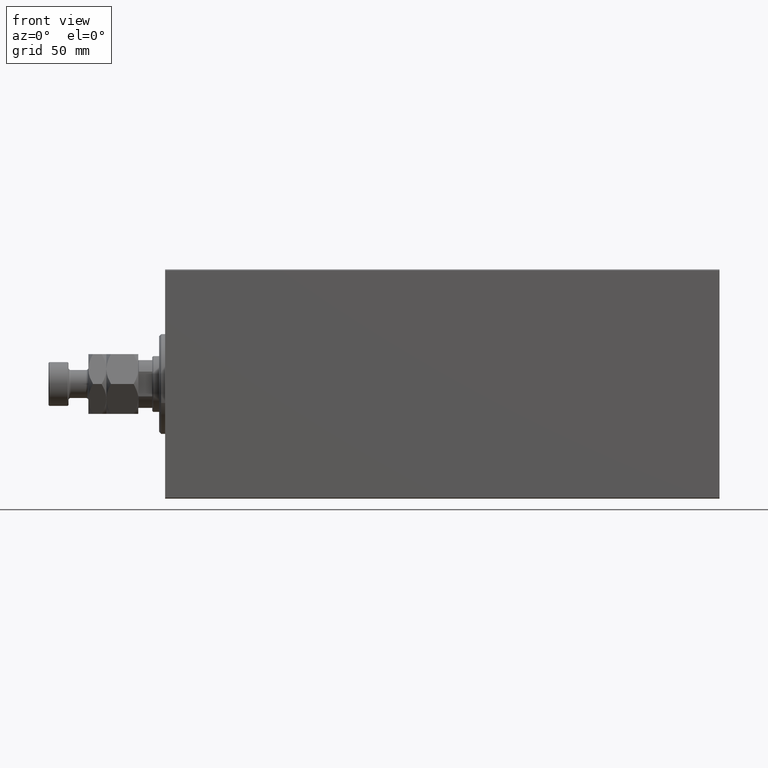
[diagram: clean part render]
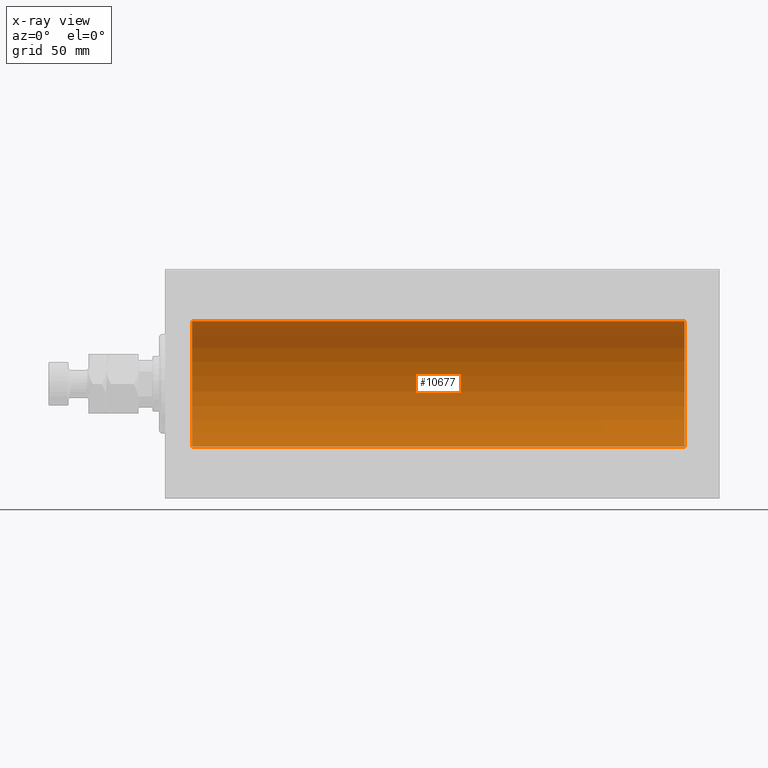
[diagram: x-ray — body ghosted, one internal face saturated and labeled with its STEP entity id]
A machine part, front view, then the same camera in x-ray: the body is ghosted and one INTERNAL B-rep face — a face not visible from any outside direction — is saturated and labeled: STEP entity #10677.
In plain terms, the highlighted cylindrical surface (partial cylindrical patch) has radius 31.5 mm, axis along (-1, -0, -0).
Its self-contained STEP definition (entity closure, byte-faithful):
#488 = AXIS2_PLACEMENT_3D ( 'NONE', #39389, #32957, #43546 ) ;
#4625 = DIRECTION ( 'NONE',  ( -1.000000000000000000, -0.000000000000000000, -0.000000000000000000 ) ) ;
#4758 = EDGE_CURVE ( 'NONE', #28755, #38875, #37499, .T. ) ;
#5442 = LINE ( 'NONE', #44318, #12066 ) ;
#6182 = CARTESIAN_POINT ( 'NONE',  ( 13.50000000000001243, 0.000000000000000000, 31.50000000000000000 ) ) ;
#7367 = AXIS2_PLACEMENT_3D ( 'NONE', #11952, #18395, #17940 ) ;
#9884 = CARTESIAN_POINT ( 'NONE',  ( 260.5000000000000000, 0.000000000000000000, 31.50000000000000000 ) ) ;
#10632 = VERTEX_POINT ( 'NONE', #42821 ) ;
#10677 = ADVANCED_FACE ( 'NONE', ( #22123 ), #21659, .F. ) ;
#11952 = CARTESIAN_POINT ( 'NONE',  ( 260.5000000000000000, 0.000000000000000000, 0.000000000000000000 ) ) ;
#12066 = VECTOR ( 'NONE', #22701, 1000.000000000000000 ) ;
#14963 = CARTESIAN_POINT ( 'NONE',  ( 13.50000000000001243, 3.857637417314162689E-15, -31.50000000000000000 ) ) ;
#15171 = ORIENTED_EDGE ( 'NONE', *, *, #4758, .T. ) ;
#15267 = EDGE_CURVE ( 'NONE', #38875, #44403, #40172, .T. ) ;
#17473 = ORIENTED_EDGE ( 'NONE', *, *, #39950, .F. ) ;
#17940 = DIRECTION ( 'NONE',  ( 0.000000000000000000, 0.000000000000000000, 1.000000000000000000 ) ) ;
#18113 = ORIENTED_EDGE ( 'NONE', *, *, #25455, .F. ) ;
#18245 = CARTESIAN_POINT ( 'NONE',  ( 260.5000000000000000, 0.000000000000000000, 31.50000000000000000 ) ) ;
#18395 = DIRECTION ( 'NONE',  ( -1.000000000000000000, 0.000000000000000000, 0.000000000000000000 ) ) ;
#20457 = DIRECTION ( 'NONE',  ( -1.000000000000000000, -0.000000000000000000, -0.000000000000000000 ) ) ;
#21321 = CIRCLE ( 'NONE', #7367, 31.50000000000000000 ) ;
#21659 = CYLINDRICAL_SURFACE ( 'NONE', #35763, 31.50000000000000000 ) ;
#22123 = FACE_OUTER_BOUND ( 'NONE', #27815, .T. ) ;
#22701 = DIRECTION ( 'NONE',  ( -1.000000000000000000, -0.000000000000000000, -0.000000000000000000 ) ) ;
#25455 = EDGE_CURVE ( 'NONE', #28755, #10632, #21321, .T. ) ;
#27815 = EDGE_LOOP ( 'NONE', ( #17473, #18113, #15171, #45198 ) ) ;
#28755 = VERTEX_POINT ( 'NONE', #18245 ) ;
#31452 = VECTOR ( 'NONE', #20457, 1000.000000000000000 ) ;
#32701 = DIRECTION ( 'NONE',  ( 0.000000000000000000, 0.000000000000000000, 1.000000000000000000 ) ) ;
#32957 = DIRECTION ( 'NONE',  ( -1.000000000000000000, 0.000000000000000000, 0.000000000000000000 ) ) ;
#35763 = AXIS2_PLACEMENT_3D ( 'NONE', #36144, #4625, #32701 ) ;
#36144 = CARTESIAN_POINT ( 'NONE',  ( 260.5000000000000000, 0.000000000000000000, 0.000000000000000000 ) ) ;
#37499 = LINE ( 'NONE', #9884, #31452 ) ;
#38875 = VERTEX_POINT ( 'NONE', #6182 ) ;
#39389 = CARTESIAN_POINT ( 'NONE',  ( 13.50000000000001243, 0.000000000000000000, 0.000000000000000000 ) ) ;
#39950 = EDGE_CURVE ( 'NONE', #10632, #44403, #5442, .T. ) ;
#40172 = CIRCLE ( 'NONE', #488, 31.50000000000000000 ) ;
#42821 = CARTESIAN_POINT ( 'NONE',  ( 260.5000000000000000, 3.857637417314162689E-15, -31.50000000000000000 ) ) ;
#43546 = DIRECTION ( 'NONE',  ( 0.000000000000000000, 0.000000000000000000, 1.000000000000000000 ) ) ;
#44318 = CARTESIAN_POINT ( 'NONE',  ( 260.5000000000000000, 3.857637417314162689E-15, -31.50000000000000000 ) ) ;
#44403 = VERTEX_POINT ( 'NONE', #14963 ) ;
#45198 = ORIENTED_EDGE ( 'NONE', *, *, #15267, .T. ) ;